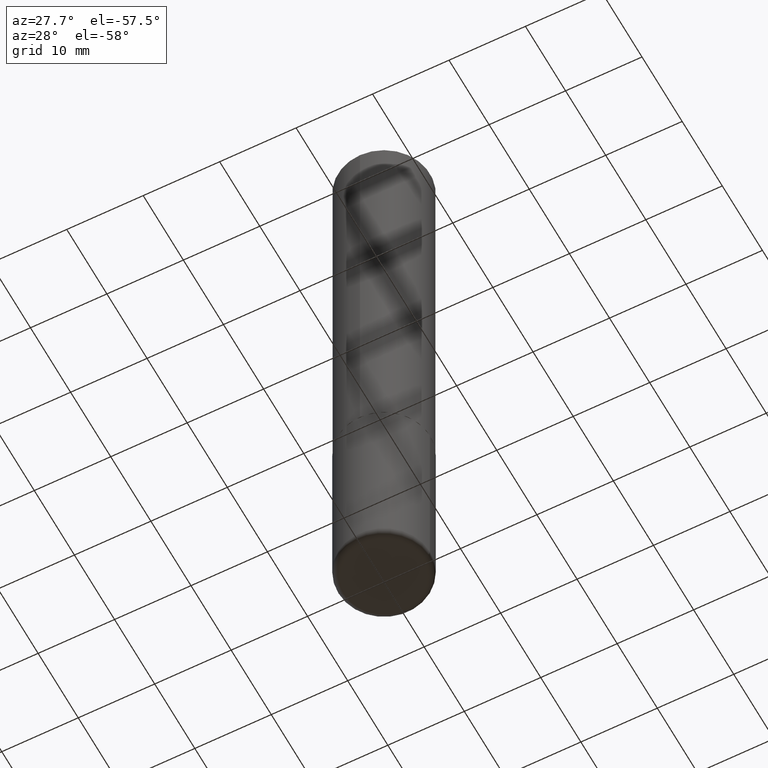
[diagram: clean part render]
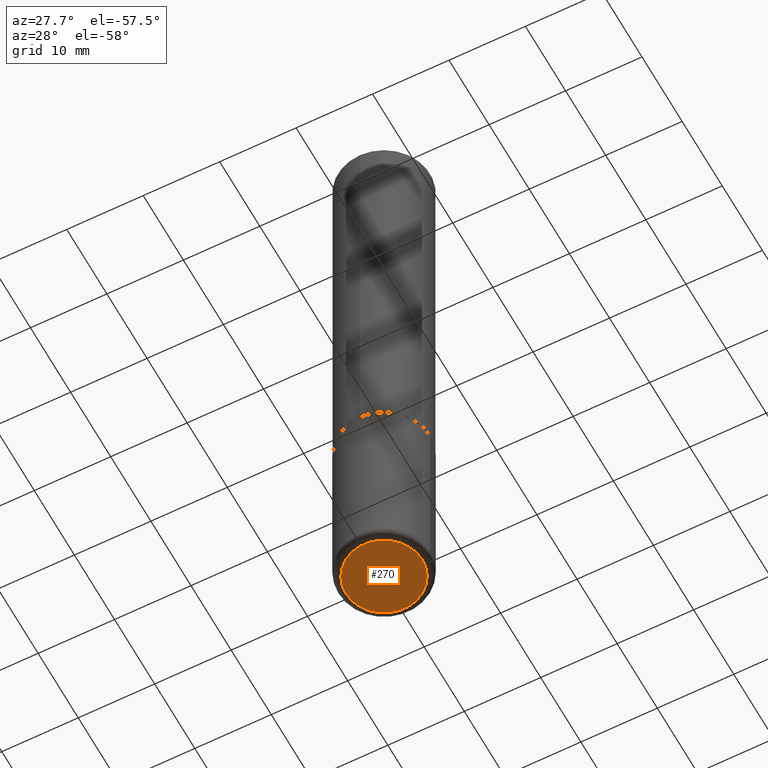
[diagram: same view with one face highlighted and labeled with its STEP entity id]
A machine part, auxiliary view. The second image highlights one B-rep face of the part: STEP entity #270.
In plain terms, the highlighted planar face has unit normal (0, -0, -1).
Its self-contained STEP definition (entity closure, byte-faithful):
#33 = DIRECTION ( 'NONE',  ( 1.000000000000000000, -6.982962677686261977E-15, 0.000000000000000000 ) ) ;
#52 = ORIENTED_EDGE ( 'NONE', *, *, #261, .F. ) ;
#53 = AXIS2_PLACEMENT_3D ( 'NONE', #174, #243, #245 ) ;
#94 = VERTEX_POINT ( 'NONE', #320 ) ;
#95 = DIRECTION ( 'NONE',  ( -1.000000000000000000, 6.982962677686265922E-15, -4.876176775795935793E-29 ) ) ;
#102 = DIRECTION ( 'NONE',  ( 2.438088387897960049E-29, -3.491481338843145188E-15, -1.000000000000000000 ) ) ;
#134 = CARTESIAN_POINT ( 'NONE',  ( 1.656106381740712274E-29, -2.048112544989781332E-14, -3.267700000000000937 ) ) ;
#142 = CIRCLE ( 'NONE', #53, 0.1968000000000000027 ) ;
#163 = CARTESIAN_POINT ( 'NONE',  ( 7.991058417971172834E-29, -1.140911357093774960E-14, -3.267700000000000937 ) ) ;
#169 = PLANE ( 'NONE',  #356 ) ;
#174 = CARTESIAN_POINT ( 'NONE',  ( 7.991058417971172834E-29, -1.140911357093774960E-14, -3.267700000000000937 ) ) ;
#213 = AXIS2_PLACEMENT_3D ( 'NONE', #163, #416, #33 ) ;
#217 = CARTESIAN_POINT ( 'NONE',  ( -0.1968000000000000027, -9.802006365641918959E-15, -3.267700000000000937 ) ) ;
#242 = ORIENTED_EDGE ( 'NONE', *, *, #365, .F. ) ;
#243 = DIRECTION ( 'NONE',  ( -2.445468806185136597E-29, 3.491481338843145583E-15, 1.000000000000000000 ) ) ;
#245 = DIRECTION ( 'NONE',  ( 1.000000000000000000, -6.982962677686261977E-15, 0.000000000000000000 ) ) ;
#261 = EDGE_CURVE ( 'NONE', #94, #390, #332, .T. ) ;
#264 = FACE_OUTER_BOUND ( 'NONE', #352, .T. ) ;
#270 = ADVANCED_FACE ( 'NONE', ( #264 ), #169, .T. ) ;
#320 = CARTESIAN_POINT ( 'NONE',  ( 0.1968000000000000027, -1.278336062590640454E-14, -3.267700000000000937 ) ) ;
#332 = CIRCLE ( 'NONE', #213, 0.1968000000000000027 ) ;
#352 = EDGE_LOOP ( 'NONE', ( #52, #242 ) ) ;
#356 = AXIS2_PLACEMENT_3D ( 'NONE', #134, #102, #95 ) ;
#365 = EDGE_CURVE ( 'NONE', #390, #94, #142, .T. ) ;
#390 = VERTEX_POINT ( 'NONE', #217 ) ;
#416 = DIRECTION ( 'NONE',  ( -2.445468806185136597E-29, 3.491481338843145583E-15, 1.000000000000000000 ) ) ;